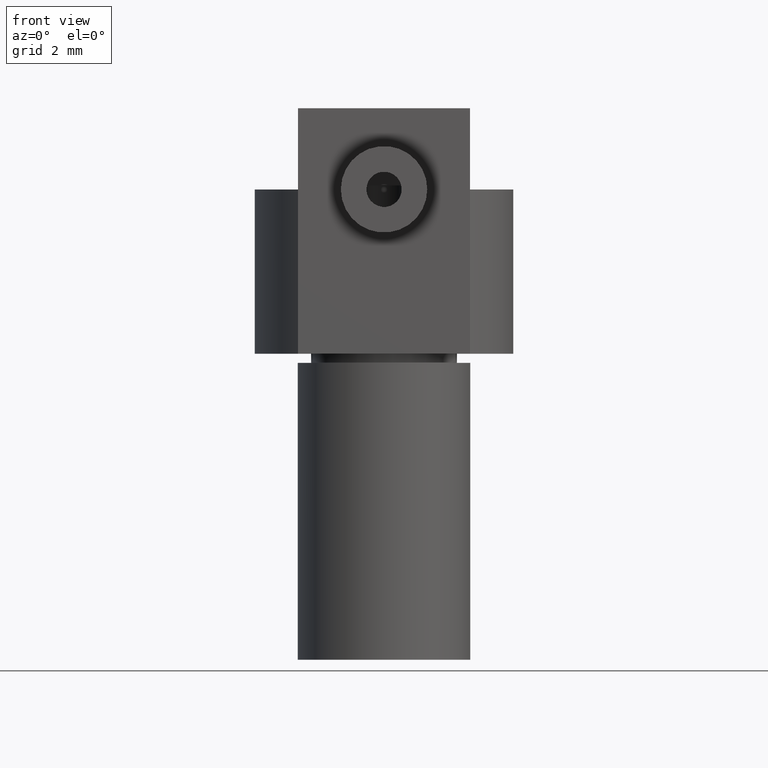
[diagram: clean part render]
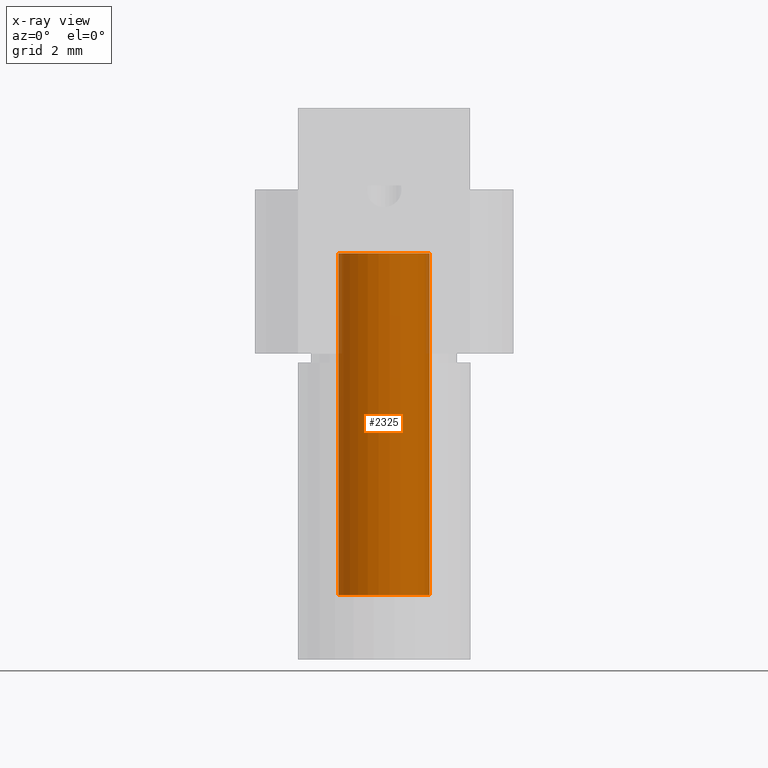
[diagram: x-ray — body ghosted, one internal face saturated and labeled with its STEP entity id]
A machine part, front view, then the same camera in x-ray: the body is ghosted and one INTERNAL B-rep face — a face not visible from any outside direction — is saturated and labeled: STEP entity #2325.
In plain terms, the highlighted cylindrical surface (bore or boss wall) has radius 1.055 mm, axis along (0, 0, 1).
Its self-contained STEP definition (entity closure, byte-faithful):
#2325 = ADVANCED_FACE('',(#2326),#2339,.F.);
#2326 = FACE_BOUND('',#2327,.F.);
#2327 = EDGE_LOOP('',(#2328,#2362,#2384,#2415));
#2328 = ORIENTED_EDGE('',*,*,#2329,.F.);
#2329 = EDGE_CURVE('',#2330,#2330,#2332,.T.);
#2330 = VERTEX_POINT('',#2331);
#2331 = CARTESIAN_POINT('',(4.208106860388,0.,2.198411163393));
#2332 = SURFACE_CURVE('',#2333,(#2338,#2350),.PCURVE_S1.);
#2333 = CIRCLE('',#2334,1.055);
#2334 = AXIS2_PLACEMENT_3D('',#2335,#2336,#2337);
#2335 = CARTESIAN_POINT('',(3.153106860388,0.,2.198411163393));
#2336 = DIRECTION('',(0.,0.,-1.));
#2337 = DIRECTION('',(1.,0.,0.));
#2338 = PCURVE('',#2339,#2344);
#2339 = CYLINDRICAL_SURFACE('',#2340,1.055);
#2340 = AXIS2_PLACEMENT_3D('',#2341,#2342,#2343);
#2341 = CARTESIAN_POINT('',(3.153106860388,0.,6.148411163393));
#2342 = DIRECTION('',(0.,0.,1.));
#2343 = DIRECTION('',(1.,0.,-0.));
#2344 = DEFINITIONAL_REPRESENTATION('',(#2345),#2349);
#2345 = LINE('',#2346,#2347);
#2346 = CARTESIAN_POINT('',(6.28318530718,-3.95));
#2347 = VECTOR('',#2348,1.);
#2348 = DIRECTION('',(-1.,0.));
#2349 = ( GEOMETRIC_REPRESENTATION_CONTEXT(2) 
PARAMETRIC_REPRESENTATION_CONTEXT() REPRESENTATION_CONTEXT('2D SPACE',''
  ) );
#2350 = PCURVE('',#2351,#2356);
#2351 = PLANE('',#2352);
#2352 = AXIS2_PLACEMENT_3D('',#2353,#2354,#2355);
#2353 = CARTESIAN_POINT('',(3.153106860388,0.,2.198411163393));
#2354 = DIRECTION('',(0.,0.,-1.));
#2355 = DIRECTION('',(-1.,0.,0.));
#2356 = DEFINITIONAL_REPRESENTATION('',(#2357),#2361);
#2357 = CIRCLE('',#2358,1.055);
#2358 = AXIS2_PLACEMENT_2D('',#2359,#2360);
#2359 = CARTESIAN_POINT('',(0.,0.));
#2360 = DIRECTION('',(-1.,0.));
#2361 = ( GEOMETRIC_REPRESENTATION_CONTEXT(2) 
PARAMETRIC_REPRESENTATION_CONTEXT() REPRESENTATION_CONTEXT('2D SPACE',''
  ) );
#2362 = ORIENTED_EDGE('',*,*,#2363,.T.);
#2363 = EDGE_CURVE('',#2330,#2364,#2366,.T.);
#2364 = VERTEX_POINT('',#2365);
#2365 = CARTESIAN_POINT('',(4.208106860388,0.,10.098411163393));
#2366 = SEAM_CURVE('',#2367,(#2370,#2377),.PCURVE_S1.);
#2367 = B_SPLINE_CURVE_WITH_KNOTS('',1,(#2368,#2369),.UNSPECIFIED.,.F.,
  .F.,(2,2),(-3.95,3.95),.PIECEWISE_BEZIER_KNOTS.);
#2368 = CARTESIAN_POINT('',(4.208106860388,0.,2.198411163393));
#2369 = CARTESIAN_POINT('',(4.208106860388,0.,10.098411163393));
#2370 = PCURVE('',#2339,#2371);
#2371 = DEFINITIONAL_REPRESENTATION('',(#2372),#2376);
#2372 = LINE('',#2373,#2374);
#2373 = CARTESIAN_POINT('',(6.28318530718,0.));
#2374 = VECTOR('',#2375,1.);
#2375 = DIRECTION('',(0.,1.));
#2376 = ( GEOMETRIC_REPRESENTATION_CONTEXT(2) 
PARAMETRIC_REPRESENTATION_CONTEXT() REPRESENTATION_CONTEXT('2D SPACE',''
  ) );
#2377 = PCURVE('',#2339,#2378);
#2378 = DEFINITIONAL_REPRESENTATION('',(#2379),#2383);
#2379 = LINE('',#2380,#2381);
#2380 = CARTESIAN_POINT('',(0.,0.));
#2381 = VECTOR('',#2382,1.);
#2382 = DIRECTION('',(0.,1.));
#2383 = ( GEOMETRIC_REPRESENTATION_CONTEXT(2) 
PARAMETRIC_REPRESENTATION_CONTEXT() REPRESENTATION_CONTEXT('2D SPACE',''
  ) );
#2384 = ORIENTED_EDGE('',*,*,#2385,.T.);
#2385 = EDGE_CURVE('',#2364,#2364,#2386,.T.);
#2386 = SURFACE_CURVE('',#2387,(#2392,#2399),.PCURVE_S1.);
#2387 = CIRCLE('',#2388,1.055);
#2388 = AXIS2_PLACEMENT_3D('',#2389,#2390,#2391);
#2389 = CARTESIAN_POINT('',(3.153106860388,0.,10.098411163393));
#2390 = DIRECTION('',(0.,0.,-1.));
#2391 = DIRECTION('',(1.,0.,0.));
#2392 = PCURVE('',#2339,#2393);
#2393 = DEFINITIONAL_REPRESENTATION('',(#2394),#2398);
#2394 = LINE('',#2395,#2396);
#2395 = CARTESIAN_POINT('',(6.28318530718,3.95));
#2396 = VECTOR('',#2397,1.);
#2397 = DIRECTION('',(-1.,0.));
#2398 = ( GEOMETRIC_REPRESENTATION_CONTEXT(2) 
PARAMETRIC_REPRESENTATION_CONTEXT() REPRESENTATION_CONTEXT('2D SPACE',''
  ) );
#2399 = PCURVE('',#2400,#2405);
#2400 = PLANE('',#2401);
#2401 = AXIS2_PLACEMENT_3D('',#2402,#2403,#2404);
#2402 = CARTESIAN_POINT('',(3.153106860388,0.,10.098411163393));
#2403 = DIRECTION('',(0.,0.,1.));
#2404 = DIRECTION('',(1.,0.,-0.));
#2405 = DEFINITIONAL_REPRESENTATION('',(#2406),#2414);
#2406 = ( BOUNDED_CURVE() B_SPLINE_CURVE(2,(#2407,#2408,#2409,#2410,
#2411,#2412,#2413),.UNSPECIFIED.,.T.,.F.) B_SPLINE_CURVE_WITH_KNOTS((1,2
    ,2,2,2,1),(-2.094395102393,0.,2.094395102393,4.188790204786,
6.28318530718,8.377580409573),.UNSPECIFIED.) CURVE() 
GEOMETRIC_REPRESENTATION_ITEM() RATIONAL_B_SPLINE_CURVE((1.,0.5,1.,0.5,
1.,0.5,1.)) REPRESENTATION_ITEM('') );
#2407 = CARTESIAN_POINT('',(1.055,0.));
#2408 = CARTESIAN_POINT('',(1.055,-1.827313601985));
#2409 = CARTESIAN_POINT('',(-0.5275,-0.913656800993));
#2410 = CARTESIAN_POINT('',(-2.11,-2.584004746201E-16));
#2411 = CARTESIAN_POINT('',(-0.5275,0.913656800993));
#2412 = CARTESIAN_POINT('',(1.055,1.827313601985));
#2413 = CARTESIAN_POINT('',(1.055,0.));
#2414 = ( GEOMETRIC_REPRESENTATION_CONTEXT(2) 
PARAMETRIC_REPRESENTATION_CONTEXT() REPRESENTATION_CONTEXT('2D SPACE',''
  ) );
#2415 = ORIENTED_EDGE('',*,*,#2363,.F.);